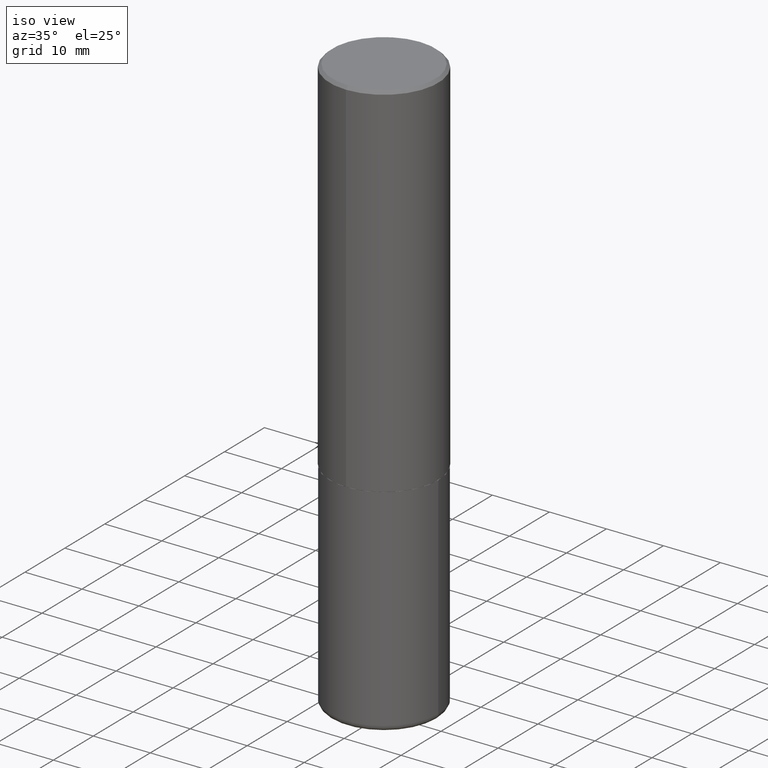
[diagram: clean part render]
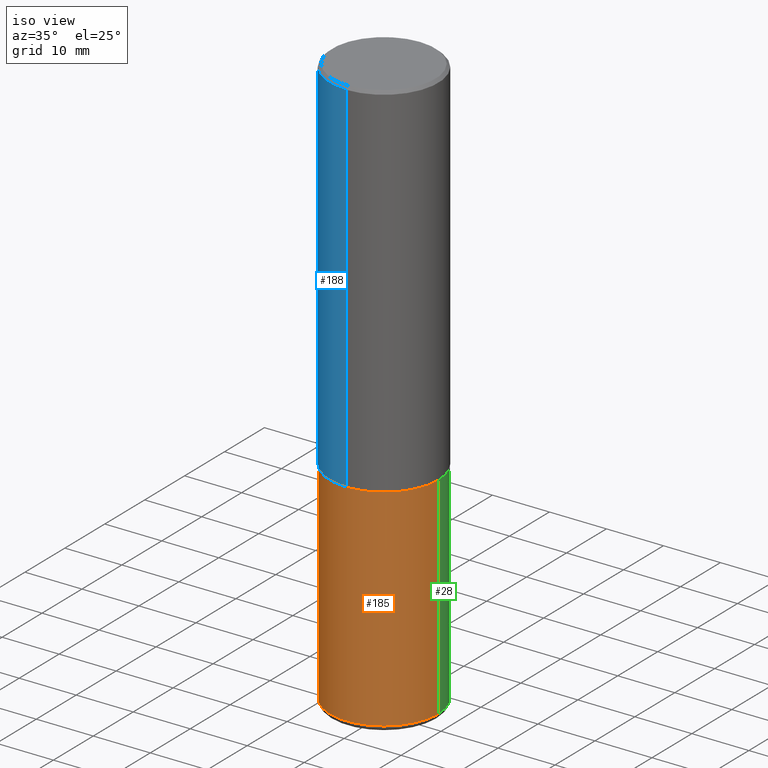
[diagram: same view with three faces highlighted in distinct colors, each labeled with its STEP entity id]
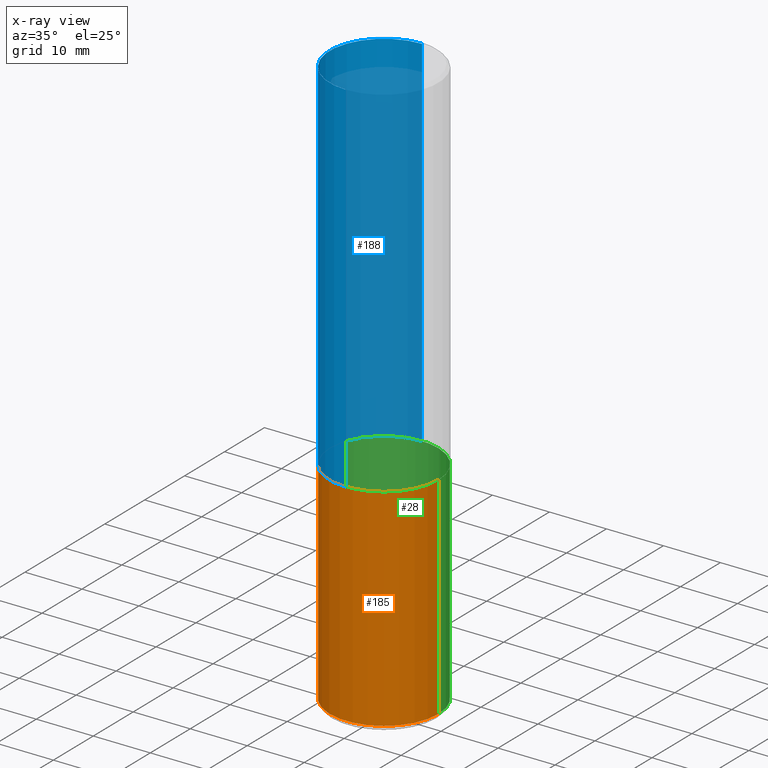
[diagram: x-ray of the same camera — body ghosted, the three highlighted faces saturated]
A machine part, iso view with three faces highlighted in distinct colors.
The next image is the same camera in x-ray (body ghosted, the three faces saturated) — at least one of them is partly hidden behind the body in this view.
Their STEP definitions:

[orange] entity #185 — the highlighted cylindrical surface (partial cylindrical patch) has radius 9.525 mm, axis along (-0, 0, 1).
#8 = ORIENTED_EDGE ( 'NONE', *, *, #406, .T. ) ;
#29 = FACE_OUTER_BOUND ( 'NONE', #136, .T. ) ;
#72 = CARTESIAN_POINT ( 'NONE',  ( 0.3749999999999999445, -2.618611004132349622E-15, 1.828566290923475642E-29 ) ) ;
#95 = CARTESIAN_POINT ( 'NONE',  ( -0.3749999999999999445, 2.664535259100375303E-15, -1.844600658845589318E-29 ) ) ;
#121 = CARTESIAN_POINT ( 'NONE',  ( 6.113672015462842613E-29, -8.728703347107864943E-15, -2.500000000000000000 ) ) ;
#136 = EDGE_LOOP ( 'NONE', ( #405, #8, #299, #346 ) ) ;
#147 = VERTEX_POINT ( 'NONE', #162 ) ;
#149 = VERTEX_POINT ( 'NONE', #288 ) ;
#154 = AXIS2_PLACEMENT_3D ( 'NONE', #121, #251, #377 ) ;
#162 = CARTESIAN_POINT ( 'NONE',  ( -0.3750000000000000555, -1.116173084271848004E-14, -3.959999999999999964 ) ) ;
#169 = CARTESIAN_POINT ( 'NONE',  ( 0.3750000000000000555, -1.134731435124021338E-14, -2.500000000000000000 ) ) ;
#181 = EDGE_CURVE ( 'NONE', #149, #247, #260, .T. ) ;
#185 = ADVANCED_FACE ( 'NONE', ( #29 ), #219, .T. ) ;
#189 = DIRECTION ( 'NONE',  ( -2.445468806185136597E-29, 3.491481338843145583E-15, 1.000000000000000000 ) ) ;
#200 = AXIS2_PLACEMENT_3D ( 'NONE', #221, #189, #313 ) ;
#207 = CARTESIAN_POINT ( 'NONE',  ( 9.684056472493140206E-29, -1.382626610181885573E-14, -3.959999999999999964 ) ) ;
#219 = CYLINDRICAL_SURFACE ( 'NONE', #200, 0.3749999999999999445 ) ;
#221 = CARTESIAN_POINT ( 'NONE',  ( 0.000000000000000000, 0.000000000000000000, 0.000000000000000000 ) ) ;
#226 = VECTOR ( 'NONE', #265, 39.37007874015748143 ) ;
#247 = VERTEX_POINT ( 'NONE', #169 ) ;
#251 = DIRECTION ( 'NONE',  ( -2.445468806185136597E-29, 3.491481338843145583E-15, 1.000000000000000000 ) ) ;
#260 = CIRCLE ( 'NONE', #154, 0.3750000000000000555 ) ;
#265 = DIRECTION ( 'NONE',  ( -2.445468806185136877E-29, 3.491481338843145188E-15, 1.000000000000000000 ) ) ;
#268 = CARTESIAN_POINT ( 'NONE',  ( 0.3750000000000000555, -1.644487710595120733E-14, -3.959999999999999964 ) ) ;
#283 = CIRCLE ( 'NONE', #399, 0.3749999999999999445 ) ;
#288 = CARTESIAN_POINT ( 'NONE',  ( -0.3750000000000000555, -8.612949465362985430E-15, -2.500000000000000000 ) ) ;
#299 = ORIENTED_EDGE ( 'NONE', *, *, #322, .T. ) ;
#309 = DIRECTION ( 'NONE',  ( -2.445468806185136597E-29, 3.491481338843145583E-15, 1.000000000000000000 ) ) ;
#313 = DIRECTION ( 'NONE',  ( 1.000000000000000000, -6.982962677686266711E-15, 4.876176775795935793E-29 ) ) ;
#322 = EDGE_CURVE ( 'NONE', #373, #247, #360, .T. ) ;
#339 = DIRECTION ( 'NONE',  ( 1.000000000000000000, -6.982962677686269077E-15, 0.000000000000000000 ) ) ;
#346 = ORIENTED_EDGE ( 'NONE', *, *, #181, .F. ) ;
#354 = DIRECTION ( 'NONE',  ( -2.445468806185136877E-29, 3.491481338843145188E-15, 1.000000000000000000 ) ) ;
#360 = LINE ( 'NONE', #72, #226 ) ;
#373 = VERTEX_POINT ( 'NONE', #268 ) ;
#376 = VECTOR ( 'NONE', #354, 39.37007874015748143 ) ;
#377 = DIRECTION ( 'NONE',  ( 1.000000000000000000, -6.982962677686264344E-15, 0.000000000000000000 ) ) ;
#388 = LINE ( 'NONE', #95, #376 ) ;
#393 = EDGE_CURVE ( 'NONE', #147, #149, #388, .T. ) ;
#399 = AXIS2_PLACEMENT_3D ( 'NONE', #207, #309, #339 ) ;
#405 = ORIENTED_EDGE ( 'NONE', *, *, #393, .F. ) ;
#406 = EDGE_CURVE ( 'NONE', #147, #373, #283, .T. ) ;

[blue] entity #188 — the highlighted cylindrical surface (partial cylindrical patch) has radius 9.525 mm, axis along (-0, 0, 1).
#1 = AXIS2_PLACEMENT_3D ( 'NONE', #414, #122, #254 ) ;
#4 = EDGE_CURVE ( 'NONE', #305, #245, #123, .T. ) ;
#5 = VERTEX_POINT ( 'NONE', #111 ) ;
#9 = DIRECTION ( 'NONE',  ( -6.982962677686266711E-15, -1.000000000000000000, 2.913971193241878794E-15 ) ) ;
#22 = DIRECTION ( 'NONE',  ( -6.982962677686265922E-15, -1.000000000000000000, 3.494488891895536035E-15 ) ) ;
#34 = EDGE_CURVE ( 'NONE', #5, #305, #366, .T. ) ;
#40 = VECTOR ( 'NONE', #211, 39.37007874015748143 ) ;
#44 = CARTESIAN_POINT ( 'NONE',  ( 2.618611004132350411E-15, 0.3749999999999999445, -0.02000000000000139513 ) ) ;
#47 = CIRCLE ( 'NONE', #279, 0.3750000000000002776 ) ;
#76 = CARTESIAN_POINT ( 'NONE',  ( 4.891111421839716706E-31, -6.982713772633485848E-17, -0.02000000000000008715 ) ) ;
#77 = EDGE_CURVE ( 'NONE', #364, #245, #128, .T. ) ;
#80 = CARTESIAN_POINT ( 'NONE',  ( 2.664535259100376486E-15, 0.3750000000000001665, -1.309258832368773493E-15 ) ) ;
#111 = CARTESIAN_POINT ( 'NONE',  ( 2.664535259100408040E-15, 0.3749999999999915623, -2.499000000000001442 ) ) ;
#122 = DIRECTION ( 'NONE',  ( -2.445555710919848229E-29, 3.491356886316728133E-15, 1.000000000000000000 ) ) ;
#123 = CIRCLE ( 'NONE', #165, 0.3750000000000000555 ) ;
#128 = LINE ( 'NONE', #257, #370 ) ;
#142 = CARTESIAN_POINT ( 'NONE',  ( -2.618611004132290852E-15, -0.3750000000000090483, -2.498999999999999222 ) ) ;
#156 = FACE_OUTER_BOUND ( 'NONE', #172, .T. ) ;
#165 = AXIS2_PLACEMENT_3D ( 'NONE', #76, #310, #22 ) ;
#172 = EDGE_LOOP ( 'NONE', ( #231, #402, #180, #361 ) ) ;
#180 = ORIENTED_EDGE ( 'NONE', *, *, #77, .T. ) ;
#188 = ADVANCED_FACE ( 'NONE', ( #156 ), #284, .T. ) ;
#211 = DIRECTION ( 'NONE',  ( -2.445555710919848229E-29, 3.491356886316728133E-15, 1.000000000000000000 ) ) ;
#231 = ORIENTED_EDGE ( 'NONE', *, *, #34, .F. ) ;
#234 = DIRECTION ( 'NONE',  ( -2.445555710919848229E-29, 3.491356886316728133E-15, 1.000000000000000000 ) ) ;
#245 = VERTEX_POINT ( 'NONE', #323 ) ;
#254 = DIRECTION ( 'NONE',  ( -6.982962677686266711E-15, -1.000000000000000000, 3.491356886316727738E-15 ) ) ;
#257 = CARTESIAN_POINT ( 'NONE',  ( -2.618611004132351200E-15, -0.3750000000000001665, 1.309258832368773493E-15 ) ) ;
#279 = AXIS2_PLACEMENT_3D ( 'NONE', #320, #234, #9 ) ;
#284 = CYLINDRICAL_SURFACE ( 'NONE', #1, 0.3750000000000001665 ) ;
#305 = VERTEX_POINT ( 'NONE', #44 ) ;
#310 = DIRECTION ( 'NONE',  ( -2.445555710919848229E-29, 3.491356886316728133E-15, 1.000000000000000000 ) ) ;
#316 = DIRECTION ( 'NONE',  ( -2.445555710919848229E-29, 3.491356886316728133E-15, 1.000000000000000000 ) ) ;
#320 = CARTESIAN_POINT ( 'NONE',  ( 6.111443721588701169E-29, -8.724900858905505270E-15, -2.499000000000000110 ) ) ;
#323 = CARTESIAN_POINT ( 'NONE',  ( -2.572686749164323547E-15, -0.3750000000000001110, -0.01999999999999877570 ) ) ;
#327 = EDGE_CURVE ( 'NONE', #5, #364, #47, .T. ) ;
#361 = ORIENTED_EDGE ( 'NONE', *, *, #4, .F. ) ;
#364 = VERTEX_POINT ( 'NONE', #142 ) ;
#366 = LINE ( 'NONE', #80, #40 ) ;
#370 = VECTOR ( 'NONE', #316, 39.37007874015748143 ) ;
#402 = ORIENTED_EDGE ( 'NONE', *, *, #327, .T. ) ;
#414 = CARTESIAN_POINT ( 'NONE',  ( 0.000000000000000000, 0.000000000000000000, 0.000000000000000000 ) ) ;

[green] entity #28 — the highlighted cylindrical surface (partial cylindrical patch) has radius 9.525 mm, axis along (-0, 0, 1).
#15 = DIRECTION ( 'NONE',  ( 1.000000000000000000, -6.982962677686266711E-15, 4.876176775795935793E-29 ) ) ;
#28 = ADVANCED_FACE ( 'NONE', ( #175 ), #153, .T. ) ;
#53 = ORIENTED_EDGE ( 'NONE', *, *, #401, .F. ) ;
#70 = DIRECTION ( 'NONE',  ( -2.445468806185136597E-29, 3.491481338843145583E-15, 1.000000000000000000 ) ) ;
#72 = CARTESIAN_POINT ( 'NONE',  ( 0.3749999999999999445, -2.618611004132349622E-15, 1.828566290923475642E-29 ) ) ;
#83 = ORIENTED_EDGE ( 'NONE', *, *, #322, .F. ) ;
#95 = CARTESIAN_POINT ( 'NONE',  ( -0.3749999999999999445, 2.664535259100375303E-15, -1.844600658845589318E-29 ) ) ;
#98 = AXIS2_PLACEMENT_3D ( 'NONE', #294, #201, #138 ) ;
#108 = ORIENTED_EDGE ( 'NONE', *, *, #274, .T. ) ;
#135 = CARTESIAN_POINT ( 'NONE',  ( 6.113672015462842613E-29, -8.728703347107864943E-15, -2.500000000000000000 ) ) ;
#138 = DIRECTION ( 'NONE',  ( 1.000000000000000000, -6.982962677686269077E-15, 0.000000000000000000 ) ) ;
#147 = VERTEX_POINT ( 'NONE', #162 ) ;
#149 = VERTEX_POINT ( 'NONE', #288 ) ;
#153 = CYLINDRICAL_SURFACE ( 'NONE', #383, 0.3749999999999999445 ) ;
#162 = CARTESIAN_POINT ( 'NONE',  ( -0.3750000000000000555, -1.116173084271848004E-14, -3.959999999999999964 ) ) ;
#169 = CARTESIAN_POINT ( 'NONE',  ( 0.3750000000000000555, -1.134731435124021338E-14, -2.500000000000000000 ) ) ;
#175 = FACE_OUTER_BOUND ( 'NONE', #307, .T. ) ;
#201 = DIRECTION ( 'NONE',  ( -2.445468806185136597E-29, 3.491481338843145583E-15, 1.000000000000000000 ) ) ;
#203 = AXIS2_PLACEMENT_3D ( 'NONE', #135, #70, #325 ) ;
#218 = ORIENTED_EDGE ( 'NONE', *, *, #393, .T. ) ;
#226 = VECTOR ( 'NONE', #265, 39.37007874015748143 ) ;
#247 = VERTEX_POINT ( 'NONE', #169 ) ;
#265 = DIRECTION ( 'NONE',  ( -2.445468806185136877E-29, 3.491481338843145188E-15, 1.000000000000000000 ) ) ;
#268 = CARTESIAN_POINT ( 'NONE',  ( 0.3750000000000000555, -1.644487710595120733E-14, -3.959999999999999964 ) ) ;
#274 = EDGE_CURVE ( 'NONE', #373, #147, #415, .T. ) ;
#281 = CARTESIAN_POINT ( 'NONE',  ( 0.000000000000000000, 0.000000000000000000, 0.000000000000000000 ) ) ;
#288 = CARTESIAN_POINT ( 'NONE',  ( -0.3750000000000000555, -8.612949465362985430E-15, -2.500000000000000000 ) ) ;
#294 = CARTESIAN_POINT ( 'NONE',  ( 9.684056472493140206E-29, -1.382626610181885573E-14, -3.959999999999999964 ) ) ;
#302 = DIRECTION ( 'NONE',  ( -2.445468806185136597E-29, 3.491481338843145583E-15, 1.000000000000000000 ) ) ;
#307 = EDGE_LOOP ( 'NONE', ( #108, #218, #53, #83 ) ) ;
#314 = CIRCLE ( 'NONE', #203, 0.3750000000000000555 ) ;
#322 = EDGE_CURVE ( 'NONE', #373, #247, #360, .T. ) ;
#325 = DIRECTION ( 'NONE',  ( 1.000000000000000000, -6.982962677686264344E-15, 0.000000000000000000 ) ) ;
#354 = DIRECTION ( 'NONE',  ( -2.445468806185136877E-29, 3.491481338843145188E-15, 1.000000000000000000 ) ) ;
#360 = LINE ( 'NONE', #72, #226 ) ;
#373 = VERTEX_POINT ( 'NONE', #268 ) ;
#376 = VECTOR ( 'NONE', #354, 39.37007874015748143 ) ;
#383 = AXIS2_PLACEMENT_3D ( 'NONE', #281, #302, #15 ) ;
#388 = LINE ( 'NONE', #95, #376 ) ;
#393 = EDGE_CURVE ( 'NONE', #147, #149, #388, .T. ) ;
#401 = EDGE_CURVE ( 'NONE', #247, #149, #314, .T. ) ;
#415 = CIRCLE ( 'NONE', #98, 0.3749999999999999445 ) ;